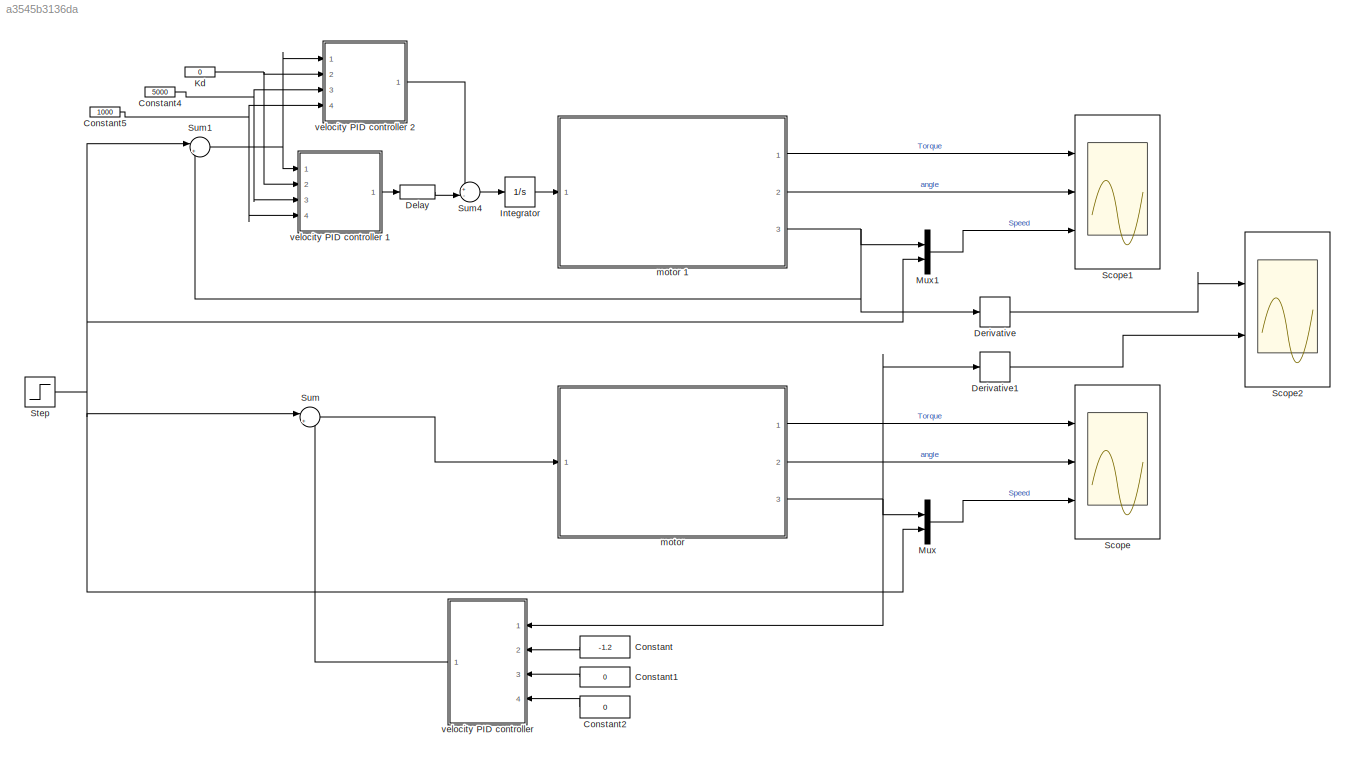
MODEL slx_a3545b3136da
KIND model
CONFIG AbsTol = auto
CONFIG EnableMultiTasking = on
CONFIG FixedStep = 0.002
CONFIG MaxStep = auto
CONFIG MinStep = auto
CONFIG RelTol = 1e-3
CONFIG SampleTimeConstraint = Unconstrained
CONFIG Solver = FixedStepAuto
CONFIG SolverName = FixedStepAuto
CONFIG StartTime = 0
CONFIG StopTime = 10
BLOCK [Constant] Constant
  Value = -1.2
BLOCK [Constant] Constant1
  Value = 0
BLOCK [Constant] Constant2
  Value = 0
BLOCK [Constant] Constant4
  Value = 5000
BLOCK [Constant] Constant5
  Value = 1000
BLOCK [Delay] Delay
  DelayLength = 1
  InitialCondition = 0
  InputPortMap = u0
  Ports = [1, 1]
BLOCK [Derivative] Derivative
BLOCK [Derivative] Derivative1
BLOCK [Integrator] Integrator
  Ports = [1, 1]
BLOCK [Constant] Kd 
  Value = 0
BLOCK [Mux] Mux
  DisplayOption = bar
  Inputs = 2
  Ports = [2, 1]
BLOCK [Mux] Mux1
  DisplayOption = bar
  Inputs = 2
  Ports = [2, 1]
BLOCK [Scope] Scope
  Floating = off
  NumInputPorts = 3
  Ports = [3]
  ScopeSpecificationString = Simulink.scopes.TimeScopeBlockCfg('CurrentConfiguration', extmgr.ConfigurationSet(extmgr.Configuration('Core','General UI',true),extmgr.Configuration('Core','Source UI',true),extmgr.Configuration('Sources','WiredSimulink',true),extmgr.Configuration('Visuals','Time Domain',true,'SerializedDisplays',{struct('MinYLimReal','-44.27931','MaxYLimReal','398.51379','YLabelReal','','MinYLimMag','0.00000','M...<+2739ch>
BLOCK [Scope] Scope1
  Floating = off
  NumInputPorts = 3
  Ports = [3]
  ScopeSpecificationString = Simulink.scopes.TimeScopeBlockCfg('CurrentConfiguration', extmgr.ConfigurationSet(extmgr.Configuration('Core','General UI',true),extmgr.Configuration('Core','Source UI',true),extmgr.Configuration('Sources','WiredSimulink',true,'DataLoggingVariableName','ScopeData1'),extmgr.Configuration('Visuals','Time Domain',true,'SerializedDisplays',{struct('MinYLimReal','-147.06946','MaxYLimReal','1323.62512',...<+2737ch>
BLOCK [Scope] Scope2
  Floating = off
  NumInputPorts = 2
  Ports = [2]
  ScopeSpecificationString = Simulink.scopes.TimeScopeBlockCfg('CurrentConfiguration', extmgr.ConfigurationSet(extmgr.Configuration('Core','General UI',true),extmgr.Configuration('Core','Source UI',true),extmgr.Configuration('Sources','WiredSimulink',true,'DataLoggingVariableName','ScopeData1'),extmgr.Configuration('Visuals','Time Domain',true,'SerializedDisplays',{struct('MinYLimReal','-667.41007','MaxYLimReal','2542.13884',...<+2052ch>
BLOCK [Step] Step
  After = 500
  SampleTime = 0.002
  Time = 3
BLOCK [Sum] Sum
  IconShape = round
  InputSameDT = off
  Inputs = |+-
  OutDataTypeStr = Inherit: Inherit via internal rule
  Ports = [2, 1]
  SaturateOnIntegerOverflow = off
BLOCK [Sum] Sum1
  IconShape = round
  InputSameDT = off
  Inputs = |+-
  OutDataTypeStr = Inherit: Inherit via internal rule
  Ports = [2, 1]
  SaturateOnIntegerOverflow = off
BLOCK [Sum] Sum4
  IconShape = round
  InputSameDT = off
  Inputs = +-|
  OutDataTypeStr = Inherit: Inherit via internal rule
  Ports = [2, 1]
  SaturateOnIntegerOverflow = off
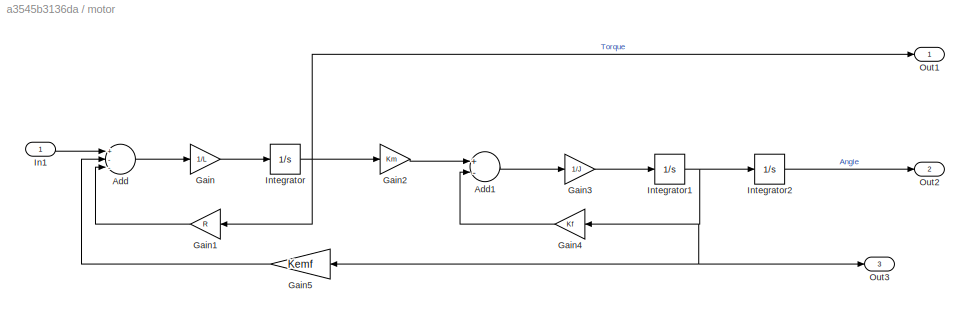
BLOCK [SubSystem] motor 
  Ports = [1, 3]
  RequestExecContextInheritance = off
BLOCK [Sum] motor /Add
  InputSameDT = off
  Inputs = +--
  OutDataTypeStr = Inherit: Inherit via internal rule
  Ports = [3, 1]
  SaturateOnIntegerOverflow = off
BLOCK [Sum] motor /Add1
  InputSameDT = off
  Inputs = +-
  OutDataTypeStr = Inherit: Inherit via internal rule
  Ports = [2, 1]
  SaturateOnIntegerOverflow = off
BLOCK [Gain] motor /Gain
  Gain = 1/L
  OutDataTypeStr = Inherit: Inherit via internal rule
  ParamDataTypeStr = Inherit: Inherit via internal rule
  SaturateOnIntegerOverflow = off
BLOCK [Gain] motor /Gain1
  Gain = R
  OutDataTypeStr = Inherit: Inherit via internal rule
  ParamDataTypeStr = Inherit: Inherit via internal rule
  SaturateOnIntegerOverflow = off
BLOCK [Gain] motor /Gain2
  Gain = Km
  OutDataTypeStr = Inherit: Inherit via internal rule
  ParamDataTypeStr = Inherit: Inherit via internal rule
  SaturateOnIntegerOverflow = off
BLOCK [Gain] motor /Gain3
  Gain = 1/J
  OutDataTypeStr = Inherit: Inherit via internal rule
  ParamDataTypeStr = Inherit: Inherit via internal rule
  SaturateOnIntegerOverflow = off
BLOCK [Gain] motor /Gain4
  Gain = Kf
  OutDataTypeStr = Inherit: Inherit via internal rule
  ParamDataTypeStr = Inherit: Inherit via internal rule
  SaturateOnIntegerOverflow = off
BLOCK [Gain] motor /Gain5
  Gain = Kemf
  OutDataTypeStr = Inherit: Inherit via internal rule
  ParamDataTypeStr = Inherit: Inherit via internal rule
  SaturateOnIntegerOverflow = off
BLOCK [Inport] motor /In1
  IconDisplay = Port number
BLOCK [Integrator] motor /Integrator
  Ports = [1, 1]
BLOCK [Integrator] motor /Integrator1
  Ports = [1, 1]
BLOCK [Integrator] motor /Integrator2
  Ports = [1, 1]
BLOCK [Outport] motor /Out1
  IconDisplay = Port number
BLOCK [Outport] motor /Out2
  IconDisplay = Port number
  Port = 2
BLOCK [Outport] motor /Out3
  IconDisplay = Port number
  Port = 3
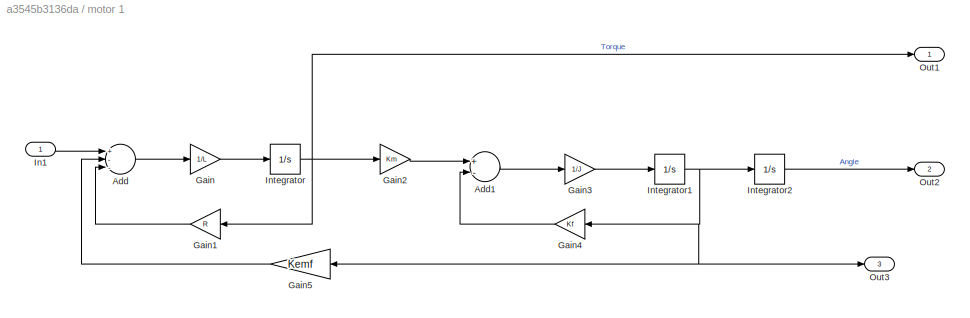
BLOCK [SubSystem] motor 1
  Ports = [1, 3]
  RequestExecContextInheritance = off
BLOCK [Sum] motor 1/Add
  InputSameDT = off
  Inputs = +--
  OutDataTypeStr = Inherit: Inherit via internal rule
  Ports = [3, 1]
  SaturateOnIntegerOverflow = off
BLOCK [Sum] motor 1/Add1
  InputSameDT = off
  Inputs = +-
  OutDataTypeStr = Inherit: Inherit via internal rule
  Ports = [2, 1]
  SaturateOnIntegerOverflow = off
BLOCK [Gain] motor 1/Gain
  Gain = 1/L
  OutDataTypeStr = Inherit: Inherit via internal rule
  ParamDataTypeStr = Inherit: Inherit via internal rule
  SaturateOnIntegerOverflow = off
BLOCK [Gain] motor 1/Gain1
  Gain = R
  OutDataTypeStr = Inherit: Inherit via internal rule
  ParamDataTypeStr = Inherit: Inherit via internal rule
  SaturateOnIntegerOverflow = off
BLOCK [Gain] motor 1/Gain2
  Gain = Km
  OutDataTypeStr = Inherit: Inherit via internal rule
  ParamDataTypeStr = Inherit: Inherit via internal rule
  SaturateOnIntegerOverflow = off
BLOCK [Gain] motor 1/Gain3
  Gain = 1/J
  OutDataTypeStr = Inherit: Inherit via internal rule
  ParamDataTypeStr = Inherit: Inherit via internal rule
  SaturateOnIntegerOverflow = off
BLOCK [Gain] motor 1/Gain4
  Gain = Kf
  OutDataTypeStr = Inherit: Inherit via internal rule
  ParamDataTypeStr = Inherit: Inherit via internal rule
  SaturateOnIntegerOverflow = off
BLOCK [Gain] motor 1/Gain5
  Gain = Kemf
  OutDataTypeStr = Inherit: Inherit via internal rule
  ParamDataTypeStr = Inherit: Inherit via internal rule
  SaturateOnIntegerOverflow = off
BLOCK [Inport] motor 1/In1
  IconDisplay = Port number
BLOCK [Integrator] motor 1/Integrator
  Ports = [1, 1]
BLOCK [Integrator] motor 1/Integrator1
  Ports = [1, 1]
BLOCK [Integrator] motor 1/Integrator2
  Ports = [1, 1]
BLOCK [Outport] motor 1/Out1
  IconDisplay = Port number
BLOCK [Outport] motor 1/Out2
  IconDisplay = Port number
  Port = 2
BLOCK [Outport] motor 1/Out3
  IconDisplay = Port number
  Port = 3
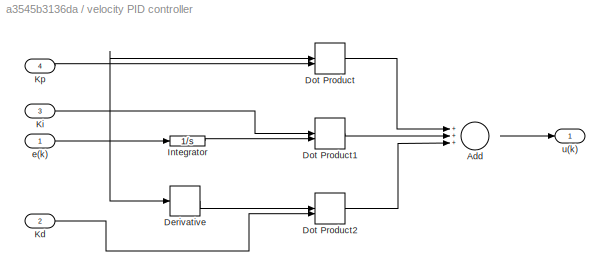
BLOCK [SubSystem] velocity PID controller 
  Ports = [4, 1]
  RequestExecContextInheritance = off
BLOCK [Sum] velocity PID controller /Add
  InputSameDT = off
  Inputs = +++
  OutDataTypeStr = Inherit: Inherit via internal rule
  Ports = [3, 1]
  SaturateOnIntegerOverflow = off
BLOCK [Derivative] velocity PID controller /Derivative
BLOCK [DotProduct] velocity PID controller /Dot Product
  OutDataTypeStr = Inherit: Inherit via internal rule
BLOCK [DotProduct] velocity PID controller /Dot Product1
  OutDataTypeStr = Inherit: Inherit via internal rule
BLOCK [DotProduct] velocity PID controller /Dot Product2
  OutDataTypeStr = Inherit: Inherit via internal rule
BLOCK [Integrator] velocity PID controller /Integrator
  Ports = [1, 1]
BLOCK [Inport] velocity PID controller /Kd 
  IconDisplay = Port number
  Port = 2
BLOCK [Inport] velocity PID controller /Ki 
  IconDisplay = Port number
  Port = 3
BLOCK [Inport] velocity PID controller /Kp 
  IconDisplay = Port number
  Port = 4
BLOCK [Inport] velocity PID controller /e(k)
  IconDisplay = Port number
BLOCK [Outport] velocity PID controller /u(k)
  IconDisplay = Port number
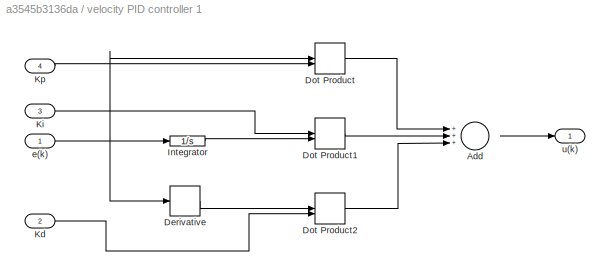
BLOCK [SubSystem] velocity PID controller 1
  Ports = [4, 1]
  RequestExecContextInheritance = off
BLOCK [Sum] velocity PID controller 1/Add
  InputSameDT = off
  Inputs = +++
  OutDataTypeStr = Inherit: Inherit via internal rule
  Ports = [3, 1]
  SaturateOnIntegerOverflow = off
BLOCK [Derivative] velocity PID controller 1/Derivative
BLOCK [DotProduct] velocity PID controller 1/Dot Product
  OutDataTypeStr = Inherit: Inherit via internal rule
BLOCK [DotProduct] velocity PID controller 1/Dot Product1
  OutDataTypeStr = Inherit: Inherit via internal rule
BLOCK [DotProduct] velocity PID controller 1/Dot Product2
  OutDataTypeStr = Inherit: Inherit via internal rule
BLOCK [Integrator] velocity PID controller 1/Integrator
  Ports = [1, 1]
BLOCK [Inport] velocity PID controller 1/Kd 
  IconDisplay = Port number
  Port = 2
BLOCK [Inport] velocity PID controller 1/Ki 
  IconDisplay = Port number
  Port = 3
BLOCK [Inport] velocity PID controller 1/Kp 
  IconDisplay = Port number
  Port = 4
BLOCK [Inport] velocity PID controller 1/e(k)
  IconDisplay = Port number
BLOCK [Outport] velocity PID controller 1/u(k)
  IconDisplay = Port number
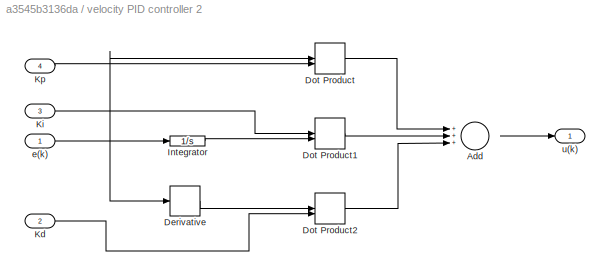
BLOCK [SubSystem] velocity PID controller 2
  Ports = [4, 1]
  RequestExecContextInheritance = off
BLOCK [Sum] velocity PID controller 2/Add
  InputSameDT = off
  Inputs = +++
  OutDataTypeStr = Inherit: Inherit via internal rule
  Ports = [3, 1]
  SaturateOnIntegerOverflow = off
BLOCK [Derivative] velocity PID controller 2/Derivative
BLOCK [DotProduct] velocity PID controller 2/Dot Product
  OutDataTypeStr = Inherit: Inherit via internal rule
BLOCK [DotProduct] velocity PID controller 2/Dot Product1
  OutDataTypeStr = Inherit: Inherit via internal rule
BLOCK [DotProduct] velocity PID controller 2/Dot Product2
  OutDataTypeStr = Inherit: Inherit via internal rule
BLOCK [Integrator] velocity PID controller 2/Integrator
  Ports = [1, 1]
BLOCK [Inport] velocity PID controller 2/Kd 
  IconDisplay = Port number
  Port = 2
BLOCK [Inport] velocity PID controller 2/Ki 
  IconDisplay = Port number
  Port = 3
BLOCK [Inport] velocity PID controller 2/Kp 
  IconDisplay = Port number
  Port = 4
BLOCK [Inport] velocity PID controller 2/e(k)
  IconDisplay = Port number
BLOCK [Outport] velocity PID controller 2/u(k)
  IconDisplay = Port number
LINE Constant1:1 -> velocity PID controller :3
LINE Constant2:1 -> velocity PID controller :4
NET Constant4:1 -> velocity PID controller 1:3, velocity PID controller 2:3
NET Constant5:1 -> velocity PID controller 1:4, velocity PID controller 2:4
LINE Constant:1 -> velocity PID controller :2
LINE Delay:1 -> Sum4:2
LINE Derivative1:1 -> Scope2:2
LINE Derivative:1 -> Scope2:1
LINE Integrator:1 -> motor 1:1
NET Kd :1 -> velocity PID controller 1:2, velocity PID controller 2:2
LINE Mux1:1 -> Scope1:3
LINE Mux:1 -> Scope:3
NET Step:1 -> Mux1:2, Mux:2, Sum1:1, Sum:1
NET Sum1:1 -> velocity PID controller 1:1, velocity PID controller 2:1
LINE Sum4:1 -> Integrator:1
LINE Sum:1 -> motor :1
LINE motor /Add1:1 -> motor /Gain3:1
LINE motor /Add:1 -> motor /Gain:1
LINE motor /Gain1:1 -> motor /Add:3
LINE motor /Gain2:1 -> motor /Add1:1
LINE motor /Gain3:1 -> motor /Integrator1:1
LINE motor /Gain4:1 -> motor /Add1:2
LINE motor /Gain5:1 -> motor /Add:2
LINE motor /Gain:1 -> motor /Integrator:1
LINE motor /In1:1 -> motor /Add:1
NET motor /Integrator1:1 -> motor /Gain4:1, motor /Gain5:1, motor /Integrator2:1, motor /Out3:1
LINE motor /Integrator2:1 -> motor /Out2:1
NET motor /Integrator:1 -> motor /Gain1:1, motor /Gain2:1, motor /Out1:1
LINE motor 1/Add1:1 -> motor 1/Gain3:1
LINE motor 1/Add:1 -> motor 1/Gain:1
LINE motor 1/Gain1:1 -> motor 1/Add:3
LINE motor 1/Gain2:1 -> motor 1/Add1:1
LINE motor 1/Gain3:1 -> motor 1/Integrator1:1
LINE motor 1/Gain4:1 -> motor 1/Add1:2
LINE motor 1/Gain5:1 -> motor 1/Add:2
LINE motor 1/Gain:1 -> motor 1/Integrator:1
LINE motor 1/In1:1 -> motor 1/Add:1
NET motor 1/Integrator1:1 -> motor 1/Gain4:1, motor 1/Gain5:1, motor 1/Integrator2:1, motor 1/Out3:1
LINE motor 1/Integrator2:1 -> motor 1/Out2:1
NET motor 1/Integrator:1 -> motor 1/Gain1:1, motor 1/Gain2:1, motor 1/Out1:1
LINE motor 1:1 -> Scope1:1
LINE motor 1:2 -> Scope1:2
NET motor 1:3 -> Derivative:1, Mux1:1, Sum1:2
LINE motor :1 -> Scope:1
LINE motor :2 -> Scope:2
NET motor :3 -> Derivative1:1, Mux:1, velocity PID controller :1
LINE velocity PID controller /Add:1 -> velocity PID controller /u(k):1
LINE velocity PID controller /Derivative:1 -> velocity PID controller /Dot Product2:1
LINE velocity PID controller /Dot Product1:1 -> velocity PID controller /Add:2
LINE velocity PID controller /Dot Product2:1 -> velocity PID controller /Add:3
LINE velocity PID controller /Dot Product:1 -> velocity PID controller /Add:1
LINE velocity PID controller /Integrator:1 -> velocity PID controller /Dot Product1:2
LINE velocity PID controller /Kd :1 -> velocity PID controller /Dot Product2:2
LINE velocity PID controller /Ki :1 -> velocity PID controller /Dot Product1:1
LINE velocity PID controller /Kp :1 -> velocity PID controller /Dot Product:2
NET velocity PID controller /e(k):1 -> velocity PID controller /Derivative:1, velocity PID controller /Dot Product:1, velocity PID controller /Integrator:1
LINE velocity PID controller 1/Add:1 -> velocity PID controller 1/u(k):1
LINE velocity PID controller 1/Derivative:1 -> velocity PID controller 1/Dot Product2:1
LINE velocity PID controller 1/Dot Product1:1 -> velocity PID controller 1/Add:2
LINE velocity PID controller 1/Dot Product2:1 -> velocity PID controller 1/Add:3
LINE velocity PID controller 1/Dot Product:1 -> velocity PID controller 1/Add:1
LINE velocity PID controller 1/Integrator:1 -> velocity PID controller 1/Dot Product1:2
LINE velocity PID controller 1/Kd :1 -> velocity PID controller 1/Dot Product2:2
LINE velocity PID controller 1/Ki :1 -> velocity PID controller 1/Dot Product1:1
LINE velocity PID controller 1/Kp :1 -> velocity PID controller 1/Dot Product:2
NET velocity PID controller 1/e(k):1 -> velocity PID controller 1/Derivative:1, velocity PID controller 1/Dot Product:1, velocity PID controller 1/Integrator:1
LINE velocity PID controller 1:1 -> Delay:1
LINE velocity PID controller 2/Add:1 -> velocity PID controller 2/u(k):1
LINE velocity PID controller 2/Derivative:1 -> velocity PID controller 2/Dot Product2:1
LINE velocity PID controller 2/Dot Product1:1 -> velocity PID controller 2/Add:2
LINE velocity PID controller 2/Dot Product2:1 -> velocity PID controller 2/Add:3
LINE velocity PID controller 2/Dot Product:1 -> velocity PID controller 2/Add:1
LINE velocity PID controller 2/Integrator:1 -> velocity PID controller 2/Dot Product1:2
LINE velocity PID controller 2/Kd :1 -> velocity PID controller 2/Dot Product2:2
LINE velocity PID controller 2/Ki :1 -> velocity PID controller 2/Dot Product1:1
LINE velocity PID controller 2/Kp :1 -> velocity PID controller 2/Dot Product:2
NET velocity PID controller 2/e(k):1 -> velocity PID controller 2/Derivative:1, velocity PID controller 2/Dot Product:1, velocity PID controller 2/Integrator:1
LINE velocity PID controller 2:1 -> Sum4:1
LINE velocity PID controller :1 -> Sum:2
note: NET lines group one-source signal fan-out (src -> all destinations, sorted); 1:1 wires keep LINE
